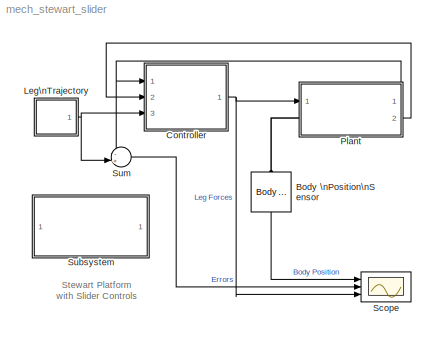
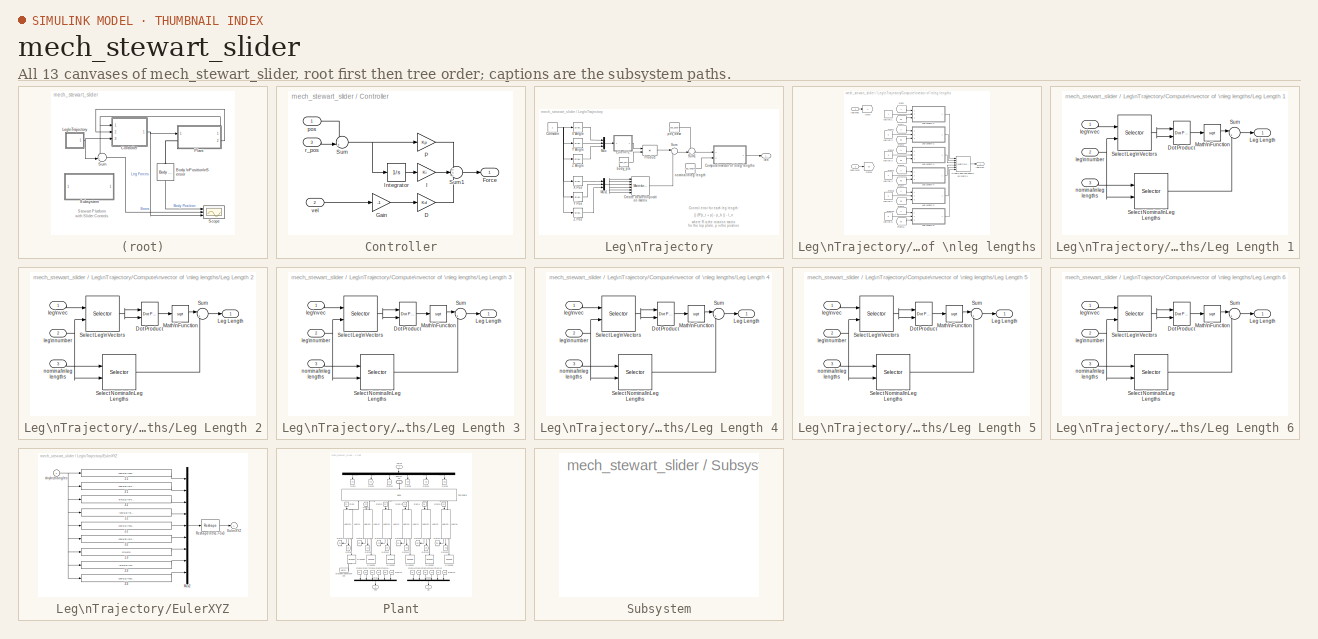
[diagram: thumbnail index - all 13 canvases of the model, root first then tree order]
MODEL mech_stewart_slider
KIND model
CONFIG InitFcn = %find_system(gcs,'FollowLinks', 'on', 'LookUnderMasks', 'all');\n
CONFIG PreLoadFcn = mech_stewartplatform_dat;
BLOCK [Reference] Body \nPosition\nSensor  REF=mblibv1/Sensors & \nActuators/Body Sensor
  Acceleration = off
  AccelerationUnits = m/s^2
  ActiveIO = on
  Angle = on
  AngleUnits = deg
  ArcAcceleration = off
  ArcAccelerationUnits = deg/s^2
  ArcVelocity = off
  ArcVelocityUnits = deg/s
  ClassName = BodySensor
  CoordPosition = on
  CoordPositionUnits = m
  DialogClass = MechanicalSensorBlock
  Muxed = on
  Opaque = on
  OutputVector = [ 3 ]
  PhysicalDomain = Mechanical
  PortType = blob
  Ports = [0, 1, 0, 0, 0, 1]
  Pose = off
  Quaternion = on
  QuaternionDDT = off
  QuaternionDT = off
  QuaternionUnits = off
  ReferenceFrame = Absolute (World)
  ShowPortLabels = on
  SourceBlock = mblibv1/Sensors & \nActuators/Body Sensor
  SourceType = msb
  Velocity = off
  VelocityUnits = m/s
  Width = 3
BLOCK [SubSystem] Controller
  MinAlgLoopOccurrences = off
  Ports = [3, 1]
  RTWSystemCode = Auto
  TreatAsAtomicUnit = off
BLOCK [Gain] Controller/D
  Gain = Kd
BLOCK [Outport] Controller/Force
  BusOutputAsStruct = off
  IconDisplay = Port number
BLOCK [Gain] Controller/Gain
  Gain = -1
BLOCK [Gain] Controller/I
  Gain = Ki
BLOCK [Integrator] Controller/Integrator
  InitialCondition = (upper_leg_mass+lower_leg_mass+(top_mass*1.3/6))*9.81/Ki
  Ports = [1, 1]
  ZeroCross = off
BLOCK [Gain] Controller/P
  Gain = Kp
BLOCK [Sum] Controller/Sum
  IconShape = round
  Inputs = -+|
  Ports = [2, 1]
BLOCK [Sum] Controller/Sum1
  IconShape = round
  Inputs = +++
  Ports = [3, 1]
BLOCK [Inport] Controller/pos
  IconDisplay = Port number
  LatchInput = off
  Port = 1
BLOCK [Inport] Controller/r_pos
  IconDisplay = Port number
  LatchInput = off
  Port = 3
BLOCK [Inport] Controller/vel
  IconDisplay = Port number
  LatchInput = off
  Port = 2
BLOCK [SubSystem] Leg\nTrajectory
  MinAlgLoopOccurrences = off
  Ports = [0, 1]
  RTWSystemCode = Auto
  TreatAsAtomicUnit = off
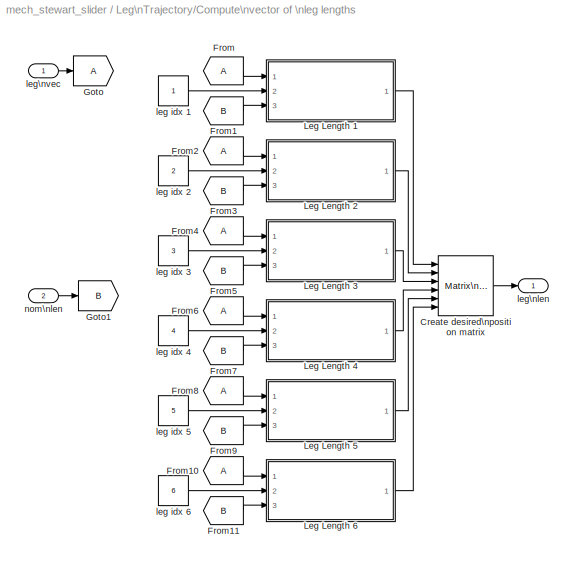
BLOCK [SubSystem] Leg\nTrajectory/Compute\nvector of \nleg lengths
  MinAlgLoopOccurrences = off
  Ports = [2, 1]
  RTWSystemCode = Auto
  TreatAsAtomicUnit = on
BLOCK [Reference] Leg\nTrajectory/Compute\nvector of \nleg lengths/Create desired\nposition matrix  REF=simulink/Math\nOperations/Matrix\nConcatenation
  Ports = [6, 1]
  SourceBlock = simulink/Math\nOperations/Matrix\nConcatenation
  SourceType = Matrix Concatenation
  catMethod = Horizontal
  numInports = 6
BLOCK [From] Leg\nTrajectory/Compute\nvector of \nleg lengths/From
  CloseFcn = tagdialog Close
  DialogController = Simulink.DDGSource
  GotoTag = A
BLOCK [From] Leg\nTrajectory/Compute\nvector of \nleg lengths/From1
  CloseFcn = tagdialog Close
  DialogController = Simulink.DDGSource
  GotoTag = B
BLOCK [From] Leg\nTrajectory/Compute\nvector of \nleg lengths/From10
  CloseFcn = tagdialog Close
  DialogController = Simulink.DDGSource
  GotoTag = A
BLOCK [From] Leg\nTrajectory/Compute\nvector of \nleg lengths/From11
  CloseFcn = tagdialog Close
  DialogController = Simulink.DDGSource
  GotoTag = B
BLOCK [From] Leg\nTrajectory/Compute\nvector of \nleg lengths/From2
  CloseFcn = tagdialog Close
  DialogController = Simulink.DDGSource
  GotoTag = A
BLOCK [From] Leg\nTrajectory/Compute\nvector of \nleg lengths/From3
  CloseFcn = tagdialog Close
  DialogController = Simulink.DDGSource
  GotoTag = B
BLOCK [From] Leg\nTrajectory/Compute\nvector of \nleg lengths/From4
  CloseFcn = tagdialog Close
  DialogController = Simulink.DDGSource
  GotoTag = A
BLOCK [From] Leg\nTrajectory/Compute\nvector of \nleg lengths/From5
  CloseFcn = tagdialog Close
  DialogController = Simulink.DDGSource
  GotoTag = B
BLOCK [From] Leg\nTrajectory/Compute\nvector of \nleg lengths/From6
  CloseFcn = tagdialog Close
  DialogController = Simulink.DDGSource
  GotoTag = A
BLOCK [From] Leg\nTrajectory/Compute\nvector of \nleg lengths/From7
  CloseFcn = tagdialog Close
  DialogController = Simulink.DDGSource
  GotoTag = B
BLOCK [From] Leg\nTrajectory/Compute\nvector of \nleg lengths/From8
  CloseFcn = tagdialog Close
  DialogController = Simulink.DDGSource
  GotoTag = A
BLOCK [From] Leg\nTrajectory/Compute\nvector of \nleg lengths/From9
  CloseFcn = tagdialog Close
  DialogController = Simulink.DDGSource
  GotoTag = B
BLOCK [Goto] Leg\nTrajectory/Compute\nvector of \nleg lengths/Goto
  DialogController = Simulink.DDGSource
  GotoTag = A
  TagVisibility = local
BLOCK [Goto] Leg\nTrajectory/Compute\nvector of \nleg lengths/Goto1
  DialogController = Simulink.DDGSource
  GotoTag = B
  TagVisibility = local
BLOCK [SubSystem] Leg\nTrajectory/Compute\nvector of \nleg lengths/Leg Length 1
  MinAlgLoopOccurrences = off
  Ports = [3, 1]
  RTWSystemCode = Auto
  TreatAsAtomicUnit = off
BLOCK [Reference] Leg\nTrajectory/Compute\nvector of \nleg lengths/Leg Length 1/Dot Product  REF=simulink/Math\nOperations/Dot Product
  DoSatur = off
  InputSameDT = off
  LockScale = off
  OutDataType = sfix(16)
  OutScaling = 2^-10
  OutputDataTypeScalingMode = Inherit via internal rule
  Ports = [2, 1]
  RndMeth = Floor
  SourceBlock = simulink/Math\nOperations/Dot Product
  SourceType = Dot Product
BLOCK [Outport] Leg\nTrajectory/Compute\nvector of \nleg lengths/Leg Length 1/Leg Length
  BusOutputAsStruct = off
  IconDisplay = Port number
BLOCK [Math] Leg\nTrajectory/Compute\nvector of \nleg lengths/Leg Length 1/Math\nFunction
  Operator = sqrt
  Ports = [1, 1]
BLOCK [Selector] Leg\nTrajectory/Compute\nvector of \nleg lengths/Leg Length 1/Select Leg\nVectors
  ColumnSrc = External
  ElementSrc = External
  Elements = [1 3]
  InputPortWidth = 3
  InputType = Matrix
  Ports = [2, 1]
  Rows = -1
BLOCK [Selector] Leg\nTrajectory/Compute\nvector of \nleg lengths/Leg Length 1/Select Nominal\nLeg Lengths
  ColumnSrc = External
  ElementSrc = External
  Elements = [1 3]
  InputPortWidth = 6
  Ports = [2, 1]
  Rows = -1
BLOCK [Sum] Leg\nTrajectory/Compute\nvector of \nleg lengths/Leg Length 1/Sum
  IconShape = round
  Inputs = |+-
  Ports = [2, 1]
BLOCK [Inport] Leg\nTrajectory/Compute\nvector of \nleg lengths/Leg Length 1/leg\nnumber
  IconDisplay = Port number
  LatchInput = off
  Port = 2
BLOCK [Inport] Leg\nTrajectory/Compute\nvector of \nleg lengths/Leg Length 1/leg\nvec
  IconDisplay = Port number
  LatchInput = off
  Port = 1
BLOCK [Inport] Leg\nTrajectory/Compute\nvector of \nleg lengths/Leg Length 1/nominal\nleg lengths
  IconDisplay = Port number
  LatchInput = off
  Port = 3
BLOCK [SubSystem] Leg\nTrajectory/Compute\nvector of \nleg lengths/Leg Length 2
  MinAlgLoopOccurrences = off
  Ports = [3, 1]
  RTWSystemCode = Auto
  TreatAsAtomicUnit = off
BLOCK [Reference] Leg\nTrajectory/Compute\nvector of \nleg lengths/Leg Length 2/Dot Product  REF=simulink/Math\nOperations/Dot Product
  DoSatur = off
  InputSameDT = off
  LockScale = off
  OutDataType = sfix(16)
  OutScaling = 2^-10
  OutputDataTypeScalingMode = Inherit via internal rule
  Ports = [2, 1]
  RndMeth = Floor
  SourceBlock = simulink/Math\nOperations/Dot Product
  SourceType = Dot Product
BLOCK [Outport] Leg\nTrajectory/Compute\nvector of \nleg lengths/Leg Length 2/Leg Length
  BusOutputAsStruct = off
  IconDisplay = Port number
BLOCK [Math] Leg\nTrajectory/Compute\nvector of \nleg lengths/Leg Length 2/Math\nFunction
  Operator = sqrt
  Ports = [1, 1]
BLOCK [Selector] Leg\nTrajectory/Compute\nvector of \nleg lengths/Leg Length 2/Select Leg\nVectors
  ColumnSrc = External
  ElementSrc = External
  Elements = [1 3]
  InputPortWidth = 3
  InputType = Matrix
  Ports = [2, 1]
  Rows = -1
BLOCK [Selector] Leg\nTrajectory/Compute\nvector of \nleg lengths/Leg Length 2/Select Nominal\nLeg Lengths
  ColumnSrc = External
  ElementSrc = External
  Elements = [1 3]
  InputPortWidth = 6
  Ports = [2, 1]
  Rows = -1
BLOCK [Sum] Leg\nTrajectory/Compute\nvector of \nleg lengths/Leg Length 2/Sum
  IconShape = round
  Inputs = |+-
  Ports = [2, 1]
BLOCK [Inport] Leg\nTrajectory/Compute\nvector of \nleg lengths/Leg Length 2/leg\nnumber
  IconDisplay = Port number
  LatchInput = off
  Port = 2
BLOCK [Inport] Leg\nTrajectory/Compute\nvector of \nleg lengths/Leg Length 2/leg\nvec
  IconDisplay = Port number
  LatchInput = off
  Port = 1
BLOCK [Inport] Leg\nTrajectory/Compute\nvector of \nleg lengths/Leg Length 2/nominal\nleg lengths
  IconDisplay = Port number
  LatchInput = off
  Port = 3
BLOCK [SubSystem] Leg\nTrajectory/Compute\nvector of \nleg lengths/Leg Length 3
  MinAlgLoopOccurrences = off
  Ports = [3, 1]
  RTWSystemCode = Auto
  TreatAsAtomicUnit = off
BLOCK [Reference] Leg\nTrajectory/Compute\nvector of \nleg lengths/Leg Length 3/Dot Product  REF=simulink/Math\nOperations/Dot Product
  DoSatur = off
  InputSameDT = off
  LockScale = off
  OutDataType = sfix(16)
  OutScaling = 2^-10
  OutputDataTypeScalingMode = Inherit via internal rule
  Ports = [2, 1]
  RndMeth = Floor
  SourceBlock = simulink/Math\nOperations/Dot Product
  SourceType = Dot Product
BLOCK [Outport] Leg\nTrajectory/Compute\nvector of \nleg lengths/Leg Length 3/Leg Length
  BusOutputAsStruct = off
  IconDisplay = Port number
BLOCK [Math] Leg\nTrajectory/Compute\nvector of \nleg lengths/Leg Length 3/Math\nFunction
  Operator = sqrt
  Ports = [1, 1]
BLOCK [Selector] Leg\nTrajectory/Compute\nvector of \nleg lengths/Leg Length 3/Select Leg\nVectors
  ColumnSrc = External
  ElementSrc = External
  Elements = [1 3]
  InputPortWidth = 3
  InputType = Matrix
  Ports = [2, 1]
  Rows = -1
BLOCK [Selector] Leg\nTrajectory/Compute\nvector of \nleg lengths/Leg Length 3/Select Nominal\nLeg Lengths
  ColumnSrc = External
  ElementSrc = External
  Elements = [1 3]
  InputPortWidth = 6
  Ports = [2, 1]
  Rows = -1
BLOCK [Sum] Leg\nTrajectory/Compute\nvector of \nleg lengths/Leg Length 3/Sum
  IconShape = round
  Inputs = |+-
  Ports = [2, 1]
BLOCK [Inport] Leg\nTrajectory/Compute\nvector of \nleg lengths/Leg Length 3/leg\nnumber
  IconDisplay = Port number
  LatchInput = off
  Port = 2
BLOCK [Inport] Leg\nTrajectory/Compute\nvector of \nleg lengths/Leg Length 3/leg\nvec
  IconDisplay = Port number
  LatchInput = off
  Port = 1
BLOCK [Inport] Leg\nTrajectory/Compute\nvector of \nleg lengths/Leg Length 3/nominal\nleg lengths
  IconDisplay = Port number
  LatchInput = off
  Port = 3
BLOCK [SubSystem] Leg\nTrajectory/Compute\nvector of \nleg lengths/Leg Length 4
  MinAlgLoopOccurrences = off
  Ports = [3, 1]
  RTWSystemCode = Auto
  TreatAsAtomicUnit = off
BLOCK [Reference] Leg\nTrajectory/Compute\nvector of \nleg lengths/Leg Length 4/Dot Product  REF=simulink/Math\nOperations/Dot Product
  DoSatur = off
  InputSameDT = off
  LockScale = off
  OutDataType = sfix(16)
  OutScaling = 2^-10
  OutputDataTypeScalingMode = Inherit via internal rule
  Ports = [2, 1]
  RndMeth = Floor
  SourceBlock = simulink/Math\nOperations/Dot Product
  SourceType = Dot Product
BLOCK [Outport] Leg\nTrajectory/Compute\nvector of \nleg lengths/Leg Length 4/Leg Length
  BusOutputAsStruct = off
  IconDisplay = Port number
BLOCK [Math] Leg\nTrajectory/Compute\nvector of \nleg lengths/Leg Length 4/Math\nFunction
  Operator = sqrt
  Ports = [1, 1]
BLOCK [Selector] Leg\nTrajectory/Compute\nvector of \nleg lengths/Leg Length 4/Select Leg\nVectors
  ColumnSrc = External
  ElementSrc = External
  Elements = [1 3]
  InputPortWidth = 3
  InputType = Matrix
  Ports = [2, 1]
  Rows = -1
BLOCK [Selector] Leg\nTrajectory/Compute\nvector of \nleg lengths/Leg Length 4/Select Nominal\nLeg Lengths
  ColumnSrc = External
  ElementSrc = External
  Elements = [1 3]
  InputPortWidth = 6
  Ports = [2, 1]
  Rows = -1
BLOCK [Sum] Leg\nTrajectory/Compute\nvector of \nleg lengths/Leg Length 4/Sum
  IconShape = round
  Inputs = |+-
  Ports = [2, 1]
BLOCK [Inport] Leg\nTrajectory/Compute\nvector of \nleg lengths/Leg Length 4/leg\nnumber
  IconDisplay = Port number
  LatchInput = off
  Port = 2
BLOCK [Inport] Leg\nTrajectory/Compute\nvector of \nleg lengths/Leg Length 4/leg\nvec
  IconDisplay = Port number
  LatchInput = off
  Port = 1
BLOCK [Inport] Leg\nTrajectory/Compute\nvector of \nleg lengths/Leg Length 4/nominal\nleg lengths
  IconDisplay = Port number
  LatchInput = off
  Port = 3
BLOCK [SubSystem] Leg\nTrajectory/Compute\nvector of \nleg lengths/Leg Length 5
  MinAlgLoopOccurrences = off
  Ports = [3, 1]
  RTWSystemCode = Auto
  TreatAsAtomicUnit = off
BLOCK [Reference] Leg\nTrajectory/Compute\nvector of \nleg lengths/Leg Length 5/Dot Product  REF=simulink/Math\nOperations/Dot Product
  DoSatur = off
  InputSameDT = off
  LockScale = off
  OutDataType = sfix(16)
  OutScaling = 2^-10
  OutputDataTypeScalingMode = Inherit via internal rule
  Ports = [2, 1]
  RndMeth = Floor
  SourceBlock = simulink/Math\nOperations/Dot Product
  SourceType = Dot Product
BLOCK [Outport] Leg\nTrajectory/Compute\nvector of \nleg lengths/Leg Length 5/Leg Length
  BusOutputAsStruct = off
  IconDisplay = Port number
BLOCK [Math] Leg\nTrajectory/Compute\nvector of \nleg lengths/Leg Length 5/Math\nFunction
  Operator = sqrt
  Ports = [1, 1]
BLOCK [Selector] Leg\nTrajectory/Compute\nvector of \nleg lengths/Leg Length 5/Select Leg\nVectors
  ColumnSrc = External
  ElementSrc = External
  Elements = [1 3]
  InputPortWidth = 3
  InputType = Matrix
  Ports = [2, 1]
  Rows = -1
BLOCK [Selector] Leg\nTrajectory/Compute\nvector of \nleg lengths/Leg Length 5/Select Nominal\nLeg Lengths
  ColumnSrc = External
  ElementSrc = External
  Elements = [1 3]
  InputPortWidth = 6
  Ports = [2, 1]
  Rows = -1
BLOCK [Sum] Leg\nTrajectory/Compute\nvector of \nleg lengths/Leg Length 5/Sum
  IconShape = round
  Inputs = |+-
  Ports = [2, 1]
BLOCK [Inport] Leg\nTrajectory/Compute\nvector of \nleg lengths/Leg Length 5/leg\nnumber
  IconDisplay = Port number
  LatchInput = off
  Port = 2
BLOCK [Inport] Leg\nTrajectory/Compute\nvector of \nleg lengths/Leg Length 5/leg\nvec
  IconDisplay = Port number
  LatchInput = off
  Port = 1
BLOCK [Inport] Leg\nTrajectory/Compute\nvector of \nleg lengths/Leg Length 5/nominal\nleg lengths
  IconDisplay = Port number
  LatchInput = off
  Port = 3
BLOCK [SubSystem] Leg\nTrajectory/Compute\nvector of \nleg lengths/Leg Length 6
  MinAlgLoopOccurrences = off
  Ports = [3, 1]
  RTWSystemCode = Auto
  TreatAsAtomicUnit = off
BLOCK [Reference] Leg\nTrajectory/Compute\nvector of \nleg lengths/Leg Length 6/Dot Product  REF=simulink/Math\nOperations/Dot Product
  DoSatur = off
  InputSameDT = off
  LockScale = off
  OutDataType = sfix(16)
  OutScaling = 2^-10
  OutputDataTypeScalingMode = Inherit via internal rule
  Ports = [2, 1]
  RndMeth = Floor
  SourceBlock = simulink/Math\nOperations/Dot Product
  SourceType = Dot Product
BLOCK [Outport] Leg\nTrajectory/Compute\nvector of \nleg lengths/Leg Length 6/Leg Length
  BusOutputAsStruct = off
  IconDisplay = Port number
BLOCK [Math] Leg\nTrajectory/Compute\nvector of \nleg lengths/Leg Length 6/Math\nFunction
  Operator = sqrt
  Ports = [1, 1]
BLOCK [Selector] Leg\nTrajectory/Compute\nvector of \nleg lengths/Leg Length 6/Select Leg\nVectors
  ColumnSrc = External
  ElementSrc = External
  Elements = [1 3]
  InputPortWidth = 3
  InputType = Matrix
  Ports = [2, 1]
  Rows = -1
BLOCK [Selector] Leg\nTrajectory/Compute\nvector of \nleg lengths/Leg Length 6/Select Nominal\nLeg Lengths
  ColumnSrc = External
  ElementSrc = External
  Elements = [1 3]
  InputPortWidth = 6
  Ports = [2, 1]
  Rows = -1
BLOCK [Sum] Leg\nTrajectory/Compute\nvector of \nleg lengths/Leg Length 6/Sum
  IconShape = round
  Inputs = |+-
  Ports = [2, 1]
BLOCK [Inport] Leg\nTrajectory/Compute\nvector of \nleg lengths/Leg Length 6/leg\nnumber
  IconDisplay = Port number
  LatchInput = off
  Port = 2
BLOCK [Inport] Leg\nTrajectory/Compute\nvector of \nleg lengths/Leg Length 6/leg\nvec
  IconDisplay = Port number
  LatchInput = off
  Port = 1
BLOCK [Inport] Leg\nTrajectory/Compute\nvector of \nleg lengths/Leg Length 6/nominal\nleg lengths
  IconDisplay = Port number
  LatchInput = off
  Port = 3
BLOCK [Constant] Leg\nTrajectory/Compute\nvector of \nleg lengths/leg idx 1
BLOCK [Constant] Leg\nTrajectory/Compute\nvector of \nleg lengths/leg idx 2
  Value = 2
BLOCK [Constant] Leg\nTrajectory/Compute\nvector of \nleg lengths/leg idx 3
  Value = 3
BLOCK [Constant] Leg\nTrajectory/Compute\nvector of \nleg lengths/leg idx 4
  Value = 4
BLOCK [Constant] Leg\nTrajectory/Compute\nvector of \nleg lengths/leg idx 5
  Value = 5
BLOCK [Constant] Leg\nTrajectory/Compute\nvector of \nleg lengths/leg idx 6
  Value = 6
BLOCK [Outport] Leg\nTrajectory/Compute\nvector of \nleg lengths/leg\nlen
  BusOutputAsStruct = off
  IconDisplay = Port number
BLOCK [Inport] Leg\nTrajectory/Compute\nvector of \nleg lengths/leg\nvec
  IconDisplay = Port number
  LatchInput = off
  Port = 1
BLOCK [Inport] Leg\nTrajectory/Compute\nvector of \nleg lengths/nom\nlen
  IconDisplay = Port number
  LatchInput = off
  Port = 2
BLOCK [Constant] Leg\nTrajectory/Constant
  VectorParams1D = off
BLOCK [Reference] Leg\nTrajectory/Create desired\nposition matrix  REF=simulink/Math\nOperations/Matrix\nConcatenation
  Ports = [6, 1]
  SourceBlock = simulink/Math\nOperations/Matrix\nConcatenation
  SourceType = Matrix Concatenation
  Tag = 9 279 330 98
  catMethod = Horizontal
  numInports = 6
BLOCK [SubSystem] Leg\nTrajectory/EulerXYZ
  AncestorBlock = aerospace/Axes\nTransformations/Direction Cosine Matrix\nfrom Euler Angles
  MaskDescription = Creates the EulerXYZ rotation matrix corresponding to body fixed rotations in the X, Y, and then Z. This matrix maps body vectors to world vectors.
  MaskDisplay = disp('Rotation\\nMatrix')
  MaskHelp = <p>This block determines the EulerXYZ matrix from a 3x1 euler angles in the X, Y, & Z directions. The matrix maps vectors the body axes to the inertial axes.</p>\n\n<p>The block input and output contain more than one signal as described below.</p>\n\n<p><H4>Block Vector Input - Euler XYZ angles</H4>\n    <ul>\n    <li>X angle</li>\n    <li>Y angle</li>\n    <li>Z angle</li>\n   </ul>\n   </p>\n\n<...<+81ch>
  MaskIconFrame = on
  MaskIconOpaque = on
  MaskIconRotate = none
  MaskIconUnits = autoscale
  MaskType = EulerXYZ
  MinAlgLoopOccurrences = off
  Ports = [1, 1]
  RTWSystemCode = Auto
  ShowPortLabels = off
  TreatAsAtomicUnit = off
BLOCK [Fcn] Leg\nTrajectory/EulerXYZ/11
  Expr = cos(u[2])*cos(u[3])
BLOCK [Fcn] Leg\nTrajectory/EulerXYZ/12
  Expr = -cos(u[2])*sin(u[3])
BLOCK [Fcn] Leg\nTrajectory/EulerXYZ/13
  Expr = sin(u[2])
BLOCK [Fcn] Leg\nTrajectory/EulerXYZ/21
  Expr = cos(u[3])*sin(u[2])*sin(u[1])+cos(u[1])*sin(u[3])
BLOCK [Fcn] Leg\nTrajectory/EulerXYZ/22
  Expr = cos(u[1])*cos(u[3]) - sin(u[1])*sin(u[2])*sin(u[3])
BLOCK [Fcn] Leg\nTrajectory/EulerXYZ/23
  Expr = -sin(u[1])*cos(u[2])
BLOCK [Fcn] Leg\nTrajectory/EulerXYZ/31
  Expr = sin(u[1])*sin(u[3]) - cos(u[1])*cos(u[3])*sin(u[2])
BLOCK [Fcn] Leg\nTrajectory/EulerXYZ/32
  Expr = cos(u[3])*sin(u[1])+cos(u[1])*sin(u[2])*sin(u[3])
BLOCK [Fcn] Leg\nTrajectory/EulerXYZ/33
  Expr = cos(u[1])*cos(u[2])
BLOCK [Outport] Leg\nTrajectory/EulerXYZ/EulerXYZ
  BusOutputAsStruct = off
  IconDisplay = Port number
  InitialOutput = 0
BLOCK [Mux] Leg\nTrajectory/EulerXYZ/Mux2
  DisplayOption = bar
  Inputs = 9
  Ports = [9, 1]
BLOCK [Reference] Leg\nTrajectory/EulerXYZ/Reshape\n9x1->3x3  REF=simulink/Math\nOperations/Reshape
  OutputDimensionality = Customize
  OutputDimensions = [3,3]
  Ports = [1, 1]
  SourceBlock = simulink/Math\nOperations/Reshape
  SourceType = Reshape
BLOCK [Inport] Leg\nTrajectory/EulerXYZ/x\ny\nz\nangles
  IconDisplay = Port number
  LatchInput = off
  Port = 1
BLOCK [Mux] Leg\nTrajectory/Mux
  DisplayOption = bar
  Inputs = 3
  Ports = [3, 1]
BLOCK [Mux] Leg\nTrajectory/Mux1
  DisplayOption = bar
  Inputs = 3
  Ports = [3, 1]
BLOCK [Product] Leg\nTrajectory/Product
  Multiplication = Matrix(*)
  Ports = [2, 1]
  RndMeth = Floor
BLOCK [Sum] Leg\nTrajectory/Sum
  IconShape = round
  Inputs = |++
  Ports = [2, 1]
BLOCK [Sum] Leg\nTrajectory/Sum1
  IconShape = round
  Inputs = -+|
  Ports = [2, 1]
BLOCK [Reference] Leg\nTrajectory/X Angle  REF=simulink/Math\nOperations/Slider\nGain
  Ports = [1, 1]
  ShowPortLabels = on
  SourceBlock = simulink/Math\nOperations/Slider\nGain
  SourceType = Slider Gain
  Tag = 9   281   330    98
  gain = 0
  high = 0.3
  low = -0.3
BLOCK [Reference] Leg\nTrajectory/X Pos  REF=simulink/Math\nOperations/Slider\nGain
  Ports = [1, 1]
  ShowPortLabels = on
  SourceBlock = simulink/Math\nOperations/Slider\nGain
  SourceType = Slider Gain
  Tag = 347   280   330    98
  gain = 0
  high = 1
  low = -1
BLOCK [Reference] Leg\nTrajectory/Y Angle  REF=simulink/Math\nOperations/Slider\nGain
  Ports = [1, 1]
  ShowPortLabels = on
  SourceBlock = simulink/Math\nOperations/Slider\nGain
  SourceType = Slider Gain
  Tag = 9   144   330    98
  gain = 0
  high = 0.3
  low = -0.3
BLOCK [Reference] Leg\nTrajectory/Y Pos  REF=simulink/Math\nOperations/Slider\nGain
  Ports = [1, 1]
  ShowPortLabels = on
  SourceBlock = simulink/Math\nOperations/Slider\nGain
  SourceType = Slider Gain
  Tag = 348   145   330    98
  gain = 0
  high = 1
  low = -1
BLOCK [Reference] Leg\nTrajectory/Z Angle  REF=simulink/Math\nOperations/Slider\nGain
  Ports = [1, 1]
  ShowPortLabels = on
  SourceBlock = simulink/Math\nOperations/Slider\nGain
  SourceType = Slider Gain
  Tag = 9    10   330    98
  gain = 0
  high = 0.3
  low = -0.3
BLOCK [Reference] Leg\nTrajectory/Z Pos  REF=simulink/Math\nOperations/Slider\nGain
  Ports = [1, 1]
  ShowPortLabels = on
  SourceBlock = simulink/Math\nOperations/Slider\nGain
  SourceType = Slider Gain
  Tag = 347     9   330    98
  gain = 1.75
  high = 3.5
  low = 0
BLOCK [Constant] Leg\nTrajectory/body_pts
  Value = body_pts
  VectorParams1D = off
BLOCK [Outport] Leg\nTrajectory/len
  BusOutputAsStruct = off
  IconDisplay = Port number
BLOCK [Constant] Leg\nTrajectory/nominal\nleg length
  Value = leg_length'
  VectorParams1D = off
BLOCK [Constant] Leg\nTrajectory/pos_base
  Value = pos_base'
  VectorParams1D = off
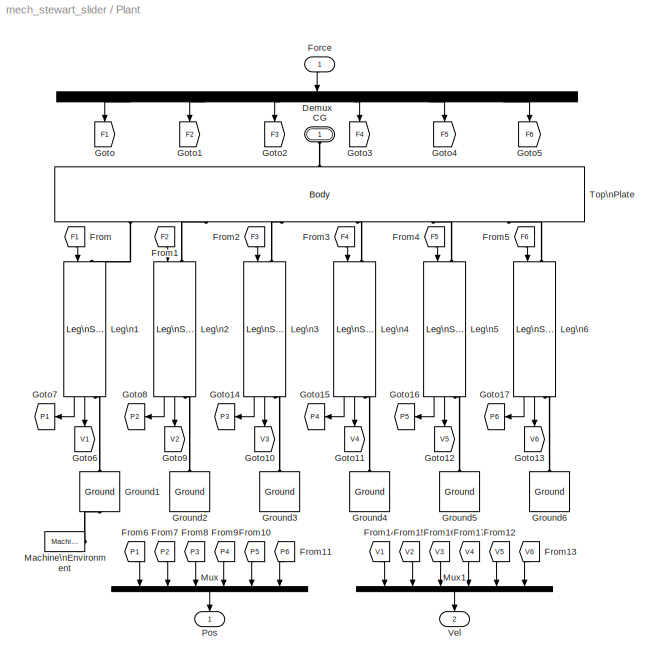
BLOCK [SubSystem] Plant
  MinAlgLoopOccurrences = off
  Ports = [1, 2, 0, 0, 0, 1]
  RTWSystemCode = Auto
  TreatAsAtomicUnit = off
BLOCK [PMIOPort] Plant/CG
  Port = 1
  Side = Left
BLOCK [Demux] Plant/Demux
  Outputs = 6
  Ports = [1, 6]
BLOCK [Inport] Plant/Force
  IconDisplay = Port number
  LatchInput = off
  Port = 1
BLOCK [From] Plant/From
  CloseFcn = tagdialog Close
  DialogController = Simulink.DDGSource
  GotoTag = F1
BLOCK [From] Plant/From1
  CloseFcn = tagdialog Close
  DialogController = Simulink.DDGSource
  GotoTag = F2
BLOCK [From] Plant/From10
  CloseFcn = tagdialog Close
  DialogController = Simulink.DDGSource
  GotoTag = P5
BLOCK [From] Plant/From11
  CloseFcn = tagdialog Close
  DialogController = Simulink.DDGSource
  GotoTag = P6
BLOCK [From] Plant/From12
  CloseFcn = tagdialog Close
  DialogController = Simulink.DDGSource
  GotoTag = V5
BLOCK [From] Plant/From13
  CloseFcn = tagdialog Close
  DialogController = Simulink.DDGSource
  GotoTag = V6
BLOCK [From] Plant/From14
  CloseFcn = tagdialog Close
  DialogController = Simulink.DDGSource
  GotoTag = V1
BLOCK [From] Plant/From15
  CloseFcn = tagdialog Close
  DialogController = Simulink.DDGSource
  GotoTag = V2
BLOCK [From] Plant/From16
  CloseFcn = tagdialog Close
  DialogController = Simulink.DDGSource
  GotoTag = V3
BLOCK [From] Plant/From17
  CloseFcn = tagdialog Close
  DialogController = Simulink.DDGSource
  GotoTag = V4
BLOCK [From] Plant/From2
  CloseFcn = tagdialog Close
  DialogController = Simulink.DDGSource
  GotoTag = F3
BLOCK [From] Plant/From3
  CloseFcn = tagdialog Close
  DialogController = Simulink.DDGSource
  GotoTag = F4
BLOCK [From] Plant/From4
  CloseFcn = tagdialog Close
  DialogController = Simulink.DDGSource
  GotoTag = F5
BLOCK [From] Plant/From5
  CloseFcn = tagdialog Close
  DialogController = Simulink.DDGSource
  GotoTag = F6
BLOCK [From] Plant/From6
  CloseFcn = tagdialog Close
  DialogController = Simulink.DDGSource
  GotoTag = P1
BLOCK [From] Plant/From7
  CloseFcn = tagdialog Close
  DialogController = Simulink.DDGSource
  GotoTag = P2
BLOCK [From] Plant/From8
  CloseFcn = tagdialog Close
  DialogController = Simulink.DDGSource
  GotoTag = P3
BLOCK [From] Plant/From9
  CloseFcn = tagdialog Close
  DialogController = Simulink.DDGSource
  GotoTag = P4
BLOCK [Goto] Plant/Goto
  DialogController = Simulink.DDGSource
  GotoTag = F1
  TagVisibility = local
BLOCK [Goto] Plant/Goto1
  DialogController = Simulink.DDGSource
  GotoTag = F2
  TagVisibility = local
BLOCK [Goto] Plant/Goto10
  DialogController = Simulink.DDGSource
  GotoTag = V3
  TagVisibility = local
BLOCK [Goto] Plant/Goto11
  DialogController = Simulink.DDGSource
  GotoTag = V4
  TagVisibility = local
BLOCK [Goto] Plant/Goto12
  DialogController = Simulink.DDGSource
  GotoTag = V5
  TagVisibility = local
BLOCK [Goto] Plant/Goto13
  DialogController = Simulink.DDGSource
  GotoTag = V6
  TagVisibility = local
BLOCK [Goto] Plant/Goto14
  DialogController = Simulink.DDGSource
  GotoTag = P3
  TagVisibility = local
BLOCK [Goto] Plant/Goto15
  DialogController = Simulink.DDGSource
  GotoTag = P4
  TagVisibility = local
BLOCK [Goto] Plant/Goto16
  DialogController = Simulink.DDGSource
  GotoTag = P5
  TagVisibility = local
BLOCK [Goto] Plant/Goto17
  DialogController = Simulink.DDGSource
  GotoTag = P6
  TagVisibility = local
BLOCK [Goto] Plant/Goto2
  DialogController = Simulink.DDGSource
  GotoTag = F3
  TagVisibility = local
BLOCK [Goto] Plant/Goto3
  DialogController = Simulink.DDGSource
  GotoTag = F4
  TagVisibility = local
BLOCK [Goto] Plant/Goto4
  DialogController = Simulink.DDGSource
  GotoTag = F5
  TagVisibility = local
BLOCK [Goto] Plant/Goto5
  DialogController = Simulink.DDGSource
  GotoTag = F6
  TagVisibility = local
BLOCK [Goto] Plant/Goto6
  DialogController = Simulink.DDGSource
  GotoTag = V1
  TagVisibility = local
BLOCK [Goto] Plant/Goto7
  DialogController = Simulink.DDGSource
  GotoTag = P1
  TagVisibility = local
BLOCK [Goto] Plant/Goto8
  DialogController = Simulink.DDGSource
  GotoTag = P2
  TagVisibility = local
BLOCK [Goto] Plant/Goto9
  DialogController = Simulink.DDGSource
  GotoTag = V2
  TagVisibility = local
BLOCK [Reference] Plant/Ground1  REF=mblibv1/Bodies/Ground
  ClassName = Ground
  CoordPosition = pos_base(1,:)
  CoordPositionUnits = m
  DialogClass = GroundBlock
  LeftPortType = env
  MachineId = [0 0]
  Opaque = on
  PhysicalDomain = Mechanical
  Ports = [0, 0, 0, 0, 0, 1, 1]
  RightPortType = workingframe
  ShowEnvPort = on
  ShowPortLabels = on
  SourceBlock = mblibv1/Bodies/Ground
  SourceType = msb
  StateVectorMgrId = -1
  UserData = DataTag0
  UserDataPersistent = on
BLOCK [Reference] Plant/Ground2  REF=mblibv1/Bodies/Ground
  ClassName = Ground
  CoordPosition = pos_base(2,:)
  CoordPositionUnits = m
  DialogClass = GroundBlock
  LeftPortType = env
  MachineId = [0 0]
  Opaque = on
  PhysicalDomain = Mechanical
  Ports = [0, 0, 0, 0, 0, 0, 1]
  RightPortType = workingframe
  ShowEnvPort = off
  ShowPortLabels = on
  SourceBlock = mblibv1/Bodies/Ground
  SourceType = msb
  StateVectorMgrId = -1
  UserData = DataTag1
  UserDataPersistent = on
BLOCK [Reference] Plant/Ground3  REF=mblibv1/Bodies/Ground
  ClassName = Ground
  CoordPosition = pos_base(3,:)
  CoordPositionUnits = m
  DialogClass = GroundBlock
  LeftPortType = env
  MachineId = [0 0]
  Opaque = on
  PhysicalDomain = Mechanical
  Ports = [0, 0, 0, 0, 0, 0, 1]
  RightPortType = workingframe
  ShowEnvPort = off
  ShowPortLabels = on
  SourceBlock = mblibv1/Bodies/Ground
  SourceType = msb
  StateVectorMgrId = -1
  UserData = DataTag2
  UserDataPersistent = on
BLOCK [Reference] Plant/Ground4  REF=mblibv1/Bodies/Ground
  ClassName = Ground
  CoordPosition = pos_base(4,:)
  CoordPositionUnits = m
  DialogClass = GroundBlock
  LeftPortType = env
  MachineId = [0 0]
  Opaque = on
  PhysicalDomain = Mechanical
  Ports = [0, 0, 0, 0, 0, 0, 1]
  RightPortType = workingframe
  ShowEnvPort = off
  ShowPortLabels = on
  SourceBlock = mblibv1/Bodies/Ground
  SourceType = msb
  StateVectorMgrId = -1
  UserData = DataTag3
  UserDataPersistent = on
BLOCK [Reference] Plant/Ground5  REF=mblibv1/Bodies/Ground
  ClassName = Ground
  CoordPosition = pos_base(5,:)
  CoordPositionUnits = m
  DialogClass = GroundBlock
  LeftPortType = env
  MachineId = [0 0]
  Opaque = on
  PhysicalDomain = Mechanical
  Ports = [0, 0, 0, 0, 0, 0, 1]
  RightPortType = workingframe
  ShowEnvPort = off
  ShowPortLabels = on
  SourceBlock = mblibv1/Bodies/Ground
  SourceType = msb
  StateVectorMgrId = -1
  UserData = DataTag4
  UserDataPersistent = on
BLOCK [Reference] Plant/Ground6  REF=mblibv1/Bodies/Ground
  ClassName = Ground
  CoordPosition = pos_base(6,:)
  CoordPositionUnits = m
  DialogClass = GroundBlock
  LeftPortType = env
  MachineId = [0 0]
  Opaque = on
  PhysicalDomain = Mechanical
  Ports = [0, 0, 0, 0, 0, 0, 1]
  RightPortType = workingframe
  ShowEnvPort = off
  ShowPortLabels = on
  SourceBlock = mblibv1/Bodies/Ground
  SourceType = msb
  StateVectorMgrId = -1
  UserData = DataTag5
  UserDataPersistent = on
BLOCK [Reference] Plant/Leg\n1  REF=mech_stewartplatform_leg/Leg\nSubsystem  (lib defined in mdl_1e59cc369c40, mdl_91b229a877f2, +5 more)
  Ports = [1, 2, 0, 0, 0, 1, 1]
  ShowPortLabels = on
  SourceBlock = mech_stewartplatform_leg/Leg\nSubsystem
  ln = 1
BLOCK [Reference] Plant/Leg\n2  REF=mech_stewartplatform_leg/Leg\nSubsystem  (lib defined in mdl_1e59cc369c40, mdl_91b229a877f2, +5 more)
  Ports = [1, 2, 0, 0, 0, 1, 1]
  ShowPortLabels = on
  SourceBlock = mech_stewartplatform_leg/Leg\nSubsystem
  ln = 2
BLOCK [Reference] Plant/Leg\n3  REF=mech_stewartplatform_leg/Leg\nSubsystem  (lib defined in mdl_1e59cc369c40, mdl_91b229a877f2, +5 more)
  Ports = [1, 2, 0, 0, 0, 1, 1]
  ShowPortLabels = on
  SourceBlock = mech_stewartplatform_leg/Leg\nSubsystem
  ln = 3
BLOCK [Reference] Plant/Leg\n4  REF=mech_stewartplatform_leg/Leg\nSubsystem  (lib defined in mdl_1e59cc369c40, mdl_91b229a877f2, +5 more)
  Ports = [1, 2, 0, 0, 0, 1, 1]
  ShowPortLabels = on
  SourceBlock = mech_stewartplatform_leg/Leg\nSubsystem
  ln = 4
BLOCK [Reference] Plant/Leg\n5  REF=mech_stewartplatform_leg/Leg\nSubsystem  (lib defined in mdl_1e59cc369c40, mdl_91b229a877f2, +5 more)
  Ports = [1, 2, 0, 0, 0, 1, 1]
  ShowPortLabels = on
  SourceBlock = mech_stewartplatform_leg/Leg\nSubsystem
  ln = 5
BLOCK [Reference] Plant/Leg\n6  REF=mech_stewartplatform_leg/Leg\nSubsystem  (lib defined in mdl_1e59cc369c40, mdl_91b229a877f2, +5 more)
  Ports = [1, 2, 0, 0, 0, 1, 1]
  ShowPortLabels = on
  SourceBlock = mech_stewartplatform_leg/Leg\nSubsystem
  ln = 6
BLOCK [Reference] Plant/Machine\nEnvironment  REF=mblibv1/Bodies/Machine\nEnvironment
  AnalysisType = Forward dynamics
  AngularAssemblyTolerance = 1e-3
  AngularAssemblyToleranceUnits = rad
  ClassName = Environment
  ConstraintAbsTolerance = 1e-4
  ConstraintRelTolerance = 1e-4
  ConstraintSolverType = Machine precision
  DialogController = MECH.DialogSource
  DialogTemplateClass = MECH.MachineEnvironment
  Dimensionality = 3D Only
  Gravity = [0 0 -9.81]
  GravityAsSignal = off
  GravityUnits = m/s^2
  LinearAssemblyTolerance = 1e-3
  LinearAssemblyToleranceUnits = m
  Opaque = on
  PerturbationSize = 1e-3
  PhysicalDomain = Mechanical
  PortType = env
  Ports = [0, 0, 0, 0, 0, 0, 1]
  ShowPortLabels = on
  SourceBlock = mblibv1/Bodies/Machine\nEnvironment
  SourceType = Mechanical
  StatePerturbationType = Adaptive
  SyncWhenCopied = off
  Tag = Factory ground
  UseRobustSingularityHandling = on
  VisualizeMachine = on
BLOCK [Mux] Plant/Mux
  DisplayOption = bar
  Inputs = 6
  Ports = [6, 1]
BLOCK [Mux] Plant/Mux1
  DisplayOption = bar
  Inputs = 6
  Ports = [6, 1]
BLOCK [Outport] Plant/Pos
  BusOutputAsStruct = off
  IconDisplay = Port number
BLOCK [Reference] Plant/Top\nPlate  REF=mblibv1/Bodies/Body
  CG = Left$CG$[0 0 height]$WORLD$WORLD$m$[0 0 0]$Euler X-Y-Z$deg$WORLD$true
  ClassName = Body
  Density = 1
  DensityUnits = kg/m^3
  DensityUse = false
  DialogClass = MechanicalBodyBlock
  Inertia = top_inertia
  InertiaUnits = kg*m^2
  LConnTagsString = CG
  LeftPortType = workingframe
  Mass = top_mass
  MassUnits = kg
  PhysicalDomain = mechanical
  Ports = [0, 0, 0, 0, 0, 1, 6]
  RConnTagsString = CS1|CS2|CS3|CS4|CS5|CS6
  RightPortType = workingframe
  Shape = Cylinder
  ShapeDims = [1 1]
  ShapeUnits = m
  ShapeUse = false
  SourceBlock = mblibv1/Bodies/Body
  SourceType = msb
  SubClassName = Unknown
  WorkingFrames = Right$CS1$pos_top(1,:)$WORLD$WORLD$m$[0 0 0]$Euler X-Y-Z$deg$WORLD$true#Right$CS2$pos_top(2,:)$WORLD$WORLD$m$[0 0 0]$Euler X-Y-Z$deg$WORLD$true#Right$CS3$pos_top(3,:)$WORLD$WORLD$m$[0 0 0]$Euler X-Y-Z$deg$WORLD$true#Right$CS4$pos_top(4,:)$WORLD$WORLD$m$[0 0 0]$Euler X-Y-Z$deg$WORLD$true#Right$CS5$pos_top(5,:)$WORLD$WORLD$m$[0 0 0]$Euler X-Y-Z$deg$WORLD$true#Right$CS6$pos_top(6,:)$WORLD$WORLD$m$[0 ...<+31ch>
BLOCK [Outport] Plant/Vel
  BusOutputAsStruct = off
  IconDisplay = Port number
  Port = 2
BLOCK [Scope] Scope
  DataFormat = StructureWithTime
  NumInputPorts = 3
  Ports = [3]
  Tag = OpenMeAtStartUp
  YMax = 3.5~1.1~40000
  YMin = -1~-1.1~-20000
BLOCK [SubSystem] Subsystem
  MaskDisplay = disp('Double-click here\\nto open sliders');
  MaskIconFrame = on
  MaskIconOpaque = on
  MaskIconRotate = none
  MaskIconUnits = autoscale
  MinAlgLoopOccurrences = off
  OpenFcn = mech_slider_open(gcs);
  Ports = []
  RTWSystemCode = Auto
  TreatAsAtomicUnit = off
BLOCK [Sum] Sum
  IconShape = round
  Inputs = -+|
  Ports = [2, 1]
ANNOTATION (root): Stewart Platform\nwith Slider Controls
ANNOTATION Leg\nTrajectory: Control error for each leg length:\n\n || (R*p_t + p) - p_b || - l_n\n\nwhere R is the rotation matrix \nfor the top plate, p is the position\nof the origin of the top plate, p_t\nis the leg attachment point at the \ntop plate, p_b is the leg attachment\npoint at the base, and l_n is the \nnominal (reference) distance between\nthe top and base attachment points.
LINE Body \nPosition\nSensor:1 -> Scope:1
LINE Controller/D:1 -> Controller/Sum1:3
LINE Controller/Gain:1 -> Controller/D:1
LINE Controller/I:1 -> Controller/Sum1:2
LINE Controller/Integrator:1 -> Controller/I:1
LINE Controller/P:1 -> Controller/Sum1:1
LINE Controller/Sum1:1 -> Controller/Force:1
NET Controller/Sum:1 -> Controller/Integrator:1, Controller/P:1
LINE Controller/pos:1 -> Controller/Sum:1
LINE Controller/r_pos:1 -> Controller/Sum:2
LINE Controller/vel:1 -> Controller/Gain:1
NET Controller:1 -> Plant:1, Scope:3
LINE Leg\nTrajectory/Compute\nvector of \nleg lengths/Create desired\nposition matrix:1 -> Leg\nTrajectory/Compute\nvector of \nleg lengths/leg\nlen:1
LINE Leg\nTrajectory/Compute\nvector of \nleg lengths/From10:1 -> Leg\nTrajectory/Compute\nvector of \nleg lengths/Leg Length 6:1
LINE Leg\nTrajectory/Compute\nvector of \nleg lengths/From11:1 -> Leg\nTrajectory/Compute\nvector of \nleg lengths/Leg Length 6:3
LINE Leg\nTrajectory/Compute\nvector of \nleg lengths/From1:1 -> Leg\nTrajectory/Compute\nvector of \nleg lengths/Leg Length 1:3
LINE Leg\nTrajectory/Compute\nvector of \nleg lengths/From2:1 -> Leg\nTrajectory/Compute\nvector of \nleg lengths/Leg Length 2:1
LINE Leg\nTrajectory/Compute\nvector of \nleg lengths/From3:1 -> Leg\nTrajectory/Compute\nvector of \nleg lengths/Leg Length 2:3
LINE Leg\nTrajectory/Compute\nvector of \nleg lengths/From4:1 -> Leg\nTrajectory/Compute\nvector of \nleg lengths/Leg Length 3:1
LINE Leg\nTrajectory/Compute\nvector of \nleg lengths/From5:1 -> Leg\nTrajectory/Compute\nvector of \nleg lengths/Leg Length 3:3
LINE Leg\nTrajectory/Compute\nvector of \nleg lengths/From6:1 -> Leg\nTrajectory/Compute\nvector of \nleg lengths/Leg Length 4:1
LINE Leg\nTrajectory/Compute\nvector of \nleg lengths/From7:1 -> Leg\nTrajectory/Compute\nvector of \nleg lengths/Leg Length 4:3
LINE Leg\nTrajectory/Compute\nvector of \nleg lengths/From8:1 -> Leg\nTrajectory/Compute\nvector of \nleg lengths/Leg Length 5:1
LINE Leg\nTrajectory/Compute\nvector of \nleg lengths/From9:1 -> Leg\nTrajectory/Compute\nvector of \nleg lengths/Leg Length 5:3
LINE Leg\nTrajectory/Compute\nvector of \nleg lengths/From:1 -> Leg\nTrajectory/Compute\nvector of \nleg lengths/Leg Length 1:1
LINE Leg\nTrajectory/Compute\nvector of \nleg lengths/Leg Length 1/Dot Product:1 -> Leg\nTrajectory/Compute\nvector of \nleg lengths/Leg Length 1/Math\nFunction:1
LINE Leg\nTrajectory/Compute\nvector of \nleg lengths/Leg Length 1/Math\nFunction:1 -> Leg\nTrajectory/Compute\nvector of \nleg lengths/Leg Length 1/Sum:1
NET Leg\nTrajectory/Compute\nvector of \nleg lengths/Leg Length 1/Select Leg\nVectors:1 -> Leg\nTrajectory/Compute\nvector of \nleg lengths/Leg Length 1/Dot Product:1, Leg\nTrajectory/Compute\nvector of \nleg lengths/Leg Length 1/Dot Product:2
LINE Leg\nTrajectory/Compute\nvector of \nleg lengths/Leg Length 1/Select Nominal\nLeg Lengths:1 -> Leg\nTrajectory/Compute\nvector of \nleg lengths/Leg Length 1/Sum:2
LINE Leg\nTrajectory/Compute\nvector of \nleg lengths/Leg Length 1/Sum:1 -> Leg\nTrajectory/Compute\nvector of \nleg lengths/Leg Length 1/Leg Length:1
NET Leg\nTrajectory/Compute\nvector of \nleg lengths/Leg Length 1/leg\nnumber:1 -> Leg\nTrajectory/Compute\nvector of \nleg lengths/Leg Length 1/Select Leg\nVectors:2, Leg\nTrajectory/Compute\nvector of \nleg lengths/Leg Length 1/Select Nominal\nLeg Lengths:2
LINE Leg\nTrajectory/Compute\nvector of \nleg lengths/Leg Length 1/leg\nvec:1 -> Leg\nTrajectory/Compute\nvector of \nleg lengths/Leg Length 1/Select Leg\nVectors:1
LINE Leg\nTrajectory/Compute\nvector of \nleg lengths/Leg Length 1/nominal\nleg lengths:1 -> Leg\nTrajectory/Compute\nvector of \nleg lengths/Leg Length 1/Select Nominal\nLeg Lengths:1
LINE Leg\nTrajectory/Compute\nvector of \nleg lengths/Leg Length 1:1 -> Leg\nTrajectory/Compute\nvector of \nleg lengths/Create desired\nposition matrix:1
LINE Leg\nTrajectory/Compute\nvector of \nleg lengths/Leg Length 2/Dot Product:1 -> Leg\nTrajectory/Compute\nvector of \nleg lengths/Leg Length 2/Math\nFunction:1
LINE Leg\nTrajectory/Compute\nvector of \nleg lengths/Leg Length 2/Math\nFunction:1 -> Leg\nTrajectory/Compute\nvector of \nleg lengths/Leg Length 2/Sum:1
NET Leg\nTrajectory/Compute\nvector of \nleg lengths/Leg Length 2/Select Leg\nVectors:1 -> Leg\nTrajectory/Compute\nvector of \nleg lengths/Leg Length 2/Dot Product:1, Leg\nTrajectory/Compute\nvector of \nleg lengths/Leg Length 2/Dot Product:2
LINE Leg\nTrajectory/Compute\nvector of \nleg lengths/Leg Length 2/Select Nominal\nLeg Lengths:1 -> Leg\nTrajectory/Compute\nvector of \nleg lengths/Leg Length 2/Sum:2
LINE Leg\nTrajectory/Compute\nvector of \nleg lengths/Leg Length 2/Sum:1 -> Leg\nTrajectory/Compute\nvector of \nleg lengths/Leg Length 2/Leg Length:1
NET Leg\nTrajectory/Compute\nvector of \nleg lengths/Leg Length 2/leg\nnumber:1 -> Leg\nTrajectory/Compute\nvector of \nleg lengths/Leg Length 2/Select Leg\nVectors:2, Leg\nTrajectory/Compute\nvector of \nleg lengths/Leg Length 2/Select Nominal\nLeg Lengths:2
LINE Leg\nTrajectory/Compute\nvector of \nleg lengths/Leg Length 2/leg\nvec:1 -> Leg\nTrajectory/Compute\nvector of \nleg lengths/Leg Length 2/Select Leg\nVectors:1
LINE Leg\nTrajectory/Compute\nvector of \nleg lengths/Leg Length 2/nominal\nleg lengths:1 -> Leg\nTrajectory/Compute\nvector of \nleg lengths/Leg Length 2/Select Nominal\nLeg Lengths:1
LINE Leg\nTrajectory/Compute\nvector of \nleg lengths/Leg Length 2:1 -> Leg\nTrajectory/Compute\nvector of \nleg lengths/Create desired\nposition matrix:2
LINE Leg\nTrajectory/Compute\nvector of \nleg lengths/Leg Length 3/Dot Product:1 -> Leg\nTrajectory/Compute\nvector of \nleg lengths/Leg Length 3/Math\nFunction:1
LINE Leg\nTrajectory/Compute\nvector of \nleg lengths/Leg Length 3/Math\nFunction:1 -> Leg\nTrajectory/Compute\nvector of \nleg lengths/Leg Length 3/Sum:1
NET Leg\nTrajectory/Compute\nvector of \nleg lengths/Leg Length 3/Select Leg\nVectors:1 -> Leg\nTrajectory/Compute\nvector of \nleg lengths/Leg Length 3/Dot Product:1, Leg\nTrajectory/Compute\nvector of \nleg lengths/Leg Length 3/Dot Product:2
LINE Leg\nTrajectory/Compute\nvector of \nleg lengths/Leg Length 3/Select Nominal\nLeg Lengths:1 -> Leg\nTrajectory/Compute\nvector of \nleg lengths/Leg Length 3/Sum:2
LINE Leg\nTrajectory/Compute\nvector of \nleg lengths/Leg Length 3/Sum:1 -> Leg\nTrajectory/Compute\nvector of \nleg lengths/Leg Length 3/Leg Length:1
NET Leg\nTrajectory/Compute\nvector of \nleg lengths/Leg Length 3/leg\nnumber:1 -> Leg\nTrajectory/Compute\nvector of \nleg lengths/Leg Length 3/Select Leg\nVectors:2, Leg\nTrajectory/Compute\nvector of \nleg lengths/Leg Length 3/Select Nominal\nLeg Lengths:2
LINE Leg\nTrajectory/Compute\nvector of \nleg lengths/Leg Length 3/leg\nvec:1 -> Leg\nTrajectory/Compute\nvector of \nleg lengths/Leg Length 3/Select Leg\nVectors:1
LINE Leg\nTrajectory/Compute\nvector of \nleg lengths/Leg Length 3/nominal\nleg lengths:1 -> Leg\nTrajectory/Compute\nvector of \nleg lengths/Leg Length 3/Select Nominal\nLeg Lengths:1
LINE Leg\nTrajectory/Compute\nvector of \nleg lengths/Leg Length 3:1 -> Leg\nTrajectory/Compute\nvector of \nleg lengths/Create desired\nposition matrix:3
LINE Leg\nTrajectory/Compute\nvector of \nleg lengths/Leg Length 4/Dot Product:1 -> Leg\nTrajectory/Compute\nvector of \nleg lengths/Leg Length 4/Math\nFunction:1
LINE Leg\nTrajectory/Compute\nvector of \nleg lengths/Leg Length 4/Math\nFunction:1 -> Leg\nTrajectory/Compute\nvector of \nleg lengths/Leg Length 4/Sum:1
NET Leg\nTrajectory/Compute\nvector of \nleg lengths/Leg Length 4/Select Leg\nVectors:1 -> Leg\nTrajectory/Compute\nvector of \nleg lengths/Leg Length 4/Dot Product:1, Leg\nTrajectory/Compute\nvector of \nleg lengths/Leg Length 4/Dot Product:2
LINE Leg\nTrajectory/Compute\nvector of \nleg lengths/Leg Length 4/Select Nominal\nLeg Lengths:1 -> Leg\nTrajectory/Compute\nvector of \nleg lengths/Leg Length 4/Sum:2
LINE Leg\nTrajectory/Compute\nvector of \nleg lengths/Leg Length 4/Sum:1 -> Leg\nTrajectory/Compute\nvector of \nleg lengths/Leg Length 4/Leg Length:1
NET Leg\nTrajectory/Compute\nvector of \nleg lengths/Leg Length 4/leg\nnumber:1 -> Leg\nTrajectory/Compute\nvector of \nleg lengths/Leg Length 4/Select Leg\nVectors:2, Leg\nTrajectory/Compute\nvector of \nleg lengths/Leg Length 4/Select Nominal\nLeg Lengths:2
LINE Leg\nTrajectory/Compute\nvector of \nleg lengths/Leg Length 4/leg\nvec:1 -> Leg\nTrajectory/Compute\nvector of \nleg lengths/Leg Length 4/Select Leg\nVectors:1
LINE Leg\nTrajectory/Compute\nvector of \nleg lengths/Leg Length 4/nominal\nleg lengths:1 -> Leg\nTrajectory/Compute\nvector of \nleg lengths/Leg Length 4/Select Nominal\nLeg Lengths:1
LINE Leg\nTrajectory/Compute\nvector of \nleg lengths/Leg Length 4:1 -> Leg\nTrajectory/Compute\nvector of \nleg lengths/Create desired\nposition matrix:4
LINE Leg\nTrajectory/Compute\nvector of \nleg lengths/Leg Length 5/Dot Product:1 -> Leg\nTrajectory/Compute\nvector of \nleg lengths/Leg Length 5/Math\nFunction:1
LINE Leg\nTrajectory/Compute\nvector of \nleg lengths/Leg Length 5/Math\nFunction:1 -> Leg\nTrajectory/Compute\nvector of \nleg lengths/Leg Length 5/Sum:1
NET Leg\nTrajectory/Compute\nvector of \nleg lengths/Leg Length 5/Select Leg\nVectors:1 -> Leg\nTrajectory/Compute\nvector of \nleg lengths/Leg Length 5/Dot Product:1, Leg\nTrajectory/Compute\nvector of \nleg lengths/Leg Length 5/Dot Product:2
LINE Leg\nTrajectory/Compute\nvector of \nleg lengths/Leg Length 5/Select Nominal\nLeg Lengths:1 -> Leg\nTrajectory/Compute\nvector of \nleg lengths/Leg Length 5/Sum:2
LINE Leg\nTrajectory/Compute\nvector of \nleg lengths/Leg Length 5/Sum:1 -> Leg\nTrajectory/Compute\nvector of \nleg lengths/Leg Length 5/Leg Length:1
NET Leg\nTrajectory/Compute\nvector of \nleg lengths/Leg Length 5/leg\nnumber:1 -> Leg\nTrajectory/Compute\nvector of \nleg lengths/Leg Length 5/Select Leg\nVectors:2, Leg\nTrajectory/Compute\nvector of \nleg lengths/Leg Length 5/Select Nominal\nLeg Lengths:2
LINE Leg\nTrajectory/Compute\nvector of \nleg lengths/Leg Length 5/leg\nvec:1 -> Leg\nTrajectory/Compute\nvector of \nleg lengths/Leg Length 5/Select Leg\nVectors:1
LINE Leg\nTrajectory/Compute\nvector of \nleg lengths/Leg Length 5/nominal\nleg lengths:1 -> Leg\nTrajectory/Compute\nvector of \nleg lengths/Leg Length 5/Select Nominal\nLeg Lengths:1
LINE Leg\nTrajectory/Compute\nvector of \nleg lengths/Leg Length 5:1 -> Leg\nTrajectory/Compute\nvector of \nleg lengths/Create desired\nposition matrix:5
LINE Leg\nTrajectory/Compute\nvector of \nleg lengths/Leg Length 6/Dot Product:1 -> Leg\nTrajectory/Compute\nvector of \nleg lengths/Leg Length 6/Math\nFunction:1
LINE Leg\nTrajectory/Compute\nvector of \nleg lengths/Leg Length 6/Math\nFunction:1 -> Leg\nTrajectory/Compute\nvector of \nleg lengths/Leg Length 6/Sum:1
NET Leg\nTrajectory/Compute\nvector of \nleg lengths/Leg Length 6/Select Leg\nVectors:1 -> Leg\nTrajectory/Compute\nvector of \nleg lengths/Leg Length 6/Dot Product:1, Leg\nTrajectory/Compute\nvector of \nleg lengths/Leg Length 6/Dot Product:2
LINE Leg\nTrajectory/Compute\nvector of \nleg lengths/Leg Length 6/Select Nominal\nLeg Lengths:1 -> Leg\nTrajectory/Compute\nvector of \nleg lengths/Leg Length 6/Sum:2
LINE Leg\nTrajectory/Compute\nvector of \nleg lengths/Leg Length 6/Sum:1 -> Leg\nTrajectory/Compute\nvector of \nleg lengths/Leg Length 6/Leg Length:1
NET Leg\nTrajectory/Compute\nvector of \nleg lengths/Leg Length 6/leg\nnumber:1 -> Leg\nTrajectory/Compute\nvector of \nleg lengths/Leg Length 6/Select Leg\nVectors:2, Leg\nTrajectory/Compute\nvector of \nleg lengths/Leg Length 6/Select Nominal\nLeg Lengths:2
LINE Leg\nTrajectory/Compute\nvector of \nleg lengths/Leg Length 6/leg\nvec:1 -> Leg\nTrajectory/Compute\nvector of \nleg lengths/Leg Length 6/Select Leg\nVectors:1
LINE Leg\nTrajectory/Compute\nvector of \nleg lengths/Leg Length 6/nominal\nleg lengths:1 -> Leg\nTrajectory/Compute\nvector of \nleg lengths/Leg Length 6/Select Nominal\nLeg Lengths:1
LINE Leg\nTrajectory/Compute\nvector of \nleg lengths/Leg Length 6:1 -> Leg\nTrajectory/Compute\nvector of \nleg lengths/Create desired\nposition matrix:6
LINE Leg\nTrajectory/Compute\nvector of \nleg lengths/leg idx 1:1 -> Leg\nTrajectory/Compute\nvector of \nleg lengths/Leg Length 1:2
LINE Leg\nTrajectory/Compute\nvector of \nleg lengths/leg idx 2:1 -> Leg\nTrajectory/Compute\nvector of \nleg lengths/Leg Length 2:2
LINE Leg\nTrajectory/Compute\nvector of \nleg lengths/leg idx 3:1 -> Leg\nTrajectory/Compute\nvector of \nleg lengths/Leg Length 3:2
LINE Leg\nTrajectory/Compute\nvector of \nleg lengths/leg idx 4:1 -> Leg\nTrajectory/Compute\nvector of \nleg lengths/Leg Length 4:2
LINE Leg\nTrajectory/Compute\nvector of \nleg lengths/leg idx 5:1 -> Leg\nTrajectory/Compute\nvector of \nleg lengths/Leg Length 5:2
LINE Leg\nTrajectory/Compute\nvector of \nleg lengths/leg idx 6:1 -> Leg\nTrajectory/Compute\nvector of \nleg lengths/Leg Length 6:2
LINE Leg\nTrajectory/Compute\nvector of \nleg lengths/leg\nvec:1 -> Leg\nTrajectory/Compute\nvector of \nleg lengths/Goto:1
LINE Leg\nTrajectory/Compute\nvector of \nleg lengths/nom\nlen:1 -> Leg\nTrajectory/Compute\nvector of \nleg lengths/Goto1:1
LINE Leg\nTrajectory/Compute\nvector of \nleg lengths:1 -> Leg\nTrajectory/len:1
NET Leg\nTrajectory/Constant:1 -> Leg\nTrajectory/X Angle:1, Leg\nTrajectory/X Pos:1, Leg\nTrajectory/Y Angle:1, Leg\nTrajectory/Y Pos:1, Leg\nTrajectory/Z Angle:1, Leg\nTrajectory/Z Pos:1
LINE Leg\nTrajectory/Create desired\nposition matrix:1 -> Leg\nTrajectory/Sum:2
LINE Leg\nTrajectory/EulerXYZ/11:1 -> Leg\nTrajectory/EulerXYZ/Mux2:1
LINE Leg\nTrajectory/EulerXYZ/12:1 -> Leg\nTrajectory/EulerXYZ/Mux2:4
LINE Leg\nTrajectory/EulerXYZ/13:1 -> Leg\nTrajectory/EulerXYZ/Mux2:7
LINE Leg\nTrajectory/EulerXYZ/21:1 -> Leg\nTrajectory/EulerXYZ/Mux2:2
LINE Leg\nTrajectory/EulerXYZ/22:1 -> Leg\nTrajectory/EulerXYZ/Mux2:5
LINE Leg\nTrajectory/EulerXYZ/23:1 -> Leg\nTrajectory/EulerXYZ/Mux2:8
LINE Leg\nTrajectory/EulerXYZ/31:1 -> Leg\nTrajectory/EulerXYZ/Mux2:3
LINE Leg\nTrajectory/EulerXYZ/32:1 -> Leg\nTrajectory/EulerXYZ/Mux2:6
LINE Leg\nTrajectory/EulerXYZ/33:1 -> Leg\nTrajectory/EulerXYZ/Mux2:9
LINE Leg\nTrajectory/EulerXYZ/Mux2:1 -> Leg\nTrajectory/EulerXYZ/Reshape\n9x1->3x3:1
LINE Leg\nTrajectory/EulerXYZ/Reshape\n9x1->3x3:1 -> Leg\nTrajectory/EulerXYZ/EulerXYZ:1
NET Leg\nTrajectory/EulerXYZ/x\ny\nz\nangles:1 -> Leg\nTrajectory/EulerXYZ/11:1, Leg\nTrajectory/EulerXYZ/12:1, Leg\nTrajectory/EulerXYZ/13:1, Leg\nTrajectory/EulerXYZ/21:1, Leg\nTrajectory/EulerXYZ/22:1, Leg\nTrajectory/EulerXYZ/23:1, Leg\nTrajectory/EulerXYZ/31:1, Leg\nTrajectory/EulerXYZ/32:1, Leg\nTrajectory/EulerXYZ/33:1
LINE Leg\nTrajectory/EulerXYZ:1 -> Leg\nTrajectory/Product:1
NET Leg\nTrajectory/Mux1:1 -> Leg\nTrajectory/Create desired\nposition matrix:1, Leg\nTrajectory/Create desired\nposition matrix:2, Leg\nTrajectory/Create desired\nposition matrix:3, Leg\nTrajectory/Create desired\nposition matrix:4, Leg\nTrajectory/Create desired\nposition matrix:5, Leg\nTrajectory/Create desired\nposition matrix:6
LINE Leg\nTrajectory/Mux:1 -> Leg\nTrajectory/EulerXYZ:1
LINE Leg\nTrajectory/Product:1 -> Leg\nTrajectory/Sum:1
LINE Leg\nTrajectory/Sum1:1 -> Leg\nTrajectory/Compute\nvector of \nleg lengths:1
LINE Leg\nTrajectory/Sum:1 -> Leg\nTrajectory/Sum1:2
LINE Leg\nTrajectory/X Angle:1 -> Leg\nTrajectory/Mux:1
LINE Leg\nTrajectory/X Pos:1 -> Leg\nTrajectory/Mux1:1
LINE Leg\nTrajectory/Y Angle:1 -> Leg\nTrajectory/Mux:2
LINE Leg\nTrajectory/Y Pos:1 -> Leg\nTrajectory/Mux1:2
LINE Leg\nTrajectory/Z Angle:1 -> Leg\nTrajectory/Mux:3
LINE Leg\nTrajectory/Z Pos:1 -> Leg\nTrajectory/Mux1:3
LINE Leg\nTrajectory/body_pts:1 -> Leg\nTrajectory/Product:2
LINE Leg\nTrajectory/nominal\nleg length:1 -> Leg\nTrajectory/Compute\nvector of \nleg lengths:2
LINE Leg\nTrajectory/pos_base:1 -> Leg\nTrajectory/Sum1:1
NET Leg\nTrajectory:1 -> Controller:3, Sum:2
LINE Plant/Demux:1 -> Plant/Goto:1
LINE Plant/Demux:2 -> Plant/Goto1:1
LINE Plant/Demux:3 -> Plant/Goto2:1
LINE Plant/Demux:4 -> Plant/Goto3:1
LINE Plant/Demux:5 -> Plant/Goto4:1
LINE Plant/Demux:6 -> Plant/Goto5:1
LINE Plant/Force:1 -> Plant/Demux:1
LINE Plant/From10:1 -> Plant/Mux:5
LINE Plant/From11:1 -> Plant/Mux:6
LINE Plant/From12:1 -> Plant/Mux1:5
LINE Plant/From13:1 -> Plant/Mux1:6
LINE Plant/From14:1 -> Plant/Mux1:1
LINE Plant/From15:1 -> Plant/Mux1:2
LINE Plant/From16:1 -> Plant/Mux1:3
LINE Plant/From17:1 -> Plant/Mux1:4
LINE Plant/From1:1 -> Plant/Leg\n2:1
LINE Plant/From2:1 -> Plant/Leg\n3:1
LINE Plant/From3:1 -> Plant/Leg\n4:1
LINE Plant/From4:1 -> Plant/Leg\n5:1
LINE Plant/From5:1 -> Plant/Leg\n6:1
LINE Plant/From6:1 -> Plant/Mux:1
LINE Plant/From7:1 -> Plant/Mux:2
LINE Plant/From8:1 -> Plant/Mux:3
LINE Plant/From9:1 -> Plant/Mux:4
LINE Plant/From:1 -> Plant/Leg\n1:1
LINE Plant/Leg\n1:1 -> Plant/Goto7:1
LINE Plant/Leg\n1:2 -> Plant/Goto6:1
LINE Plant/Leg\n2:1 -> Plant/Goto8:1
LINE Plant/Leg\n2:2 -> Plant/Goto9:1
LINE Plant/Leg\n3:1 -> Plant/Goto14:1
LINE Plant/Leg\n3:2 -> Plant/Goto10:1
LINE Plant/Leg\n4:1 -> Plant/Goto15:1
LINE Plant/Leg\n4:2 -> Plant/Goto11:1
LINE Plant/Leg\n5:1 -> Plant/Goto16:1
LINE Plant/Leg\n5:2 -> Plant/Goto12:1
LINE Plant/Leg\n6:1 -> Plant/Goto17:1
LINE Plant/Leg\n6:2 -> Plant/Goto13:1
LINE Plant/Mux1:1 -> Plant/Vel:1
LINE Plant/Mux:1 -> Plant/Pos:1
NET Plant:1 -> Controller:1, Sum:1
LINE Plant:2 -> Controller:2
LINE Sum:1 -> Scope:2
PLINE Body \nPosition\nSensor:LConn1 -- Plant:LConn1
PLINE Plant/CG:RConn1 -- Plant/Top\nPlate:LConn1
PLINE Plant/Ground1:LConn1 -- Plant/Machine\nEnvironment:RConn1
PLINE Plant/Ground1:RConn1 -- Plant/Leg\n1:RConn1
PLINE Plant/Ground2:RConn1 -- Plant/Leg\n2:RConn1
PLINE Plant/Ground3:RConn1 -- Plant/Leg\n3:RConn1
PLINE Plant/Ground4:RConn1 -- Plant/Leg\n4:RConn1
PLINE Plant/Ground5:RConn1 -- Plant/Leg\n5:RConn1
PLINE Plant/Ground6:RConn1 -- Plant/Leg\n6:RConn1
PLINE Plant/Leg\n1:LConn1 -- Plant/Top\nPlate:RConn1
PLINE Plant/Leg\n2:LConn1 -- Plant/Top\nPlate:RConn2
PLINE Plant/Leg\n3:LConn1 -- Plant/Top\nPlate:RConn3
PLINE Plant/Leg\n4:LConn1 -- Plant/Top\nPlate:RConn4
PLINE Plant/Leg\n5:LConn1 -- Plant/Top\nPlate:RConn5
PLINE Plant/Leg\n6:LConn1 -- Plant/Top\nPlate:RConn6
note: NET lines group one-source signal fan-out (src -> all destinations, sorted); 1:1 wires keep LINE
